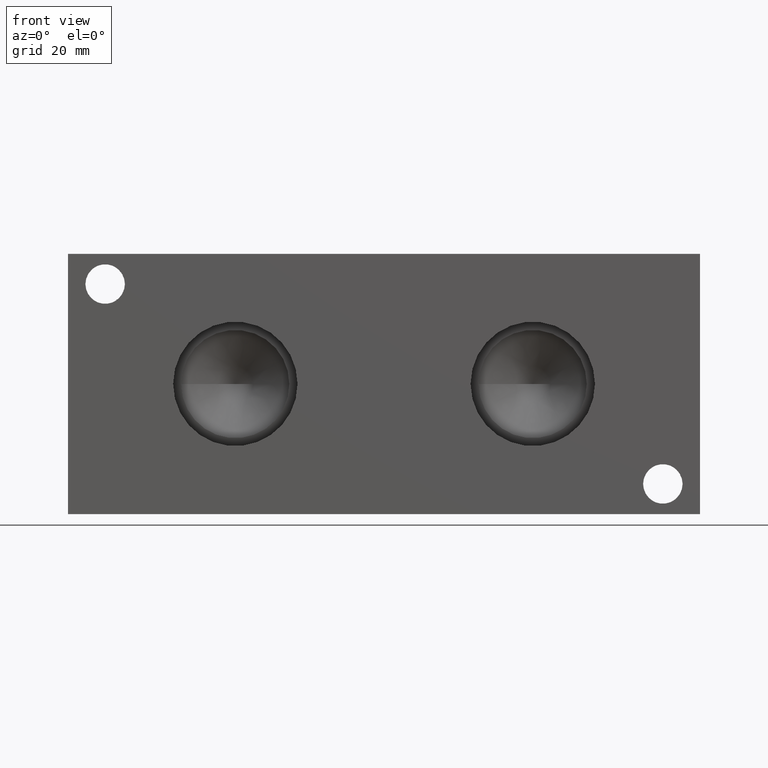
[diagram: clean part render]
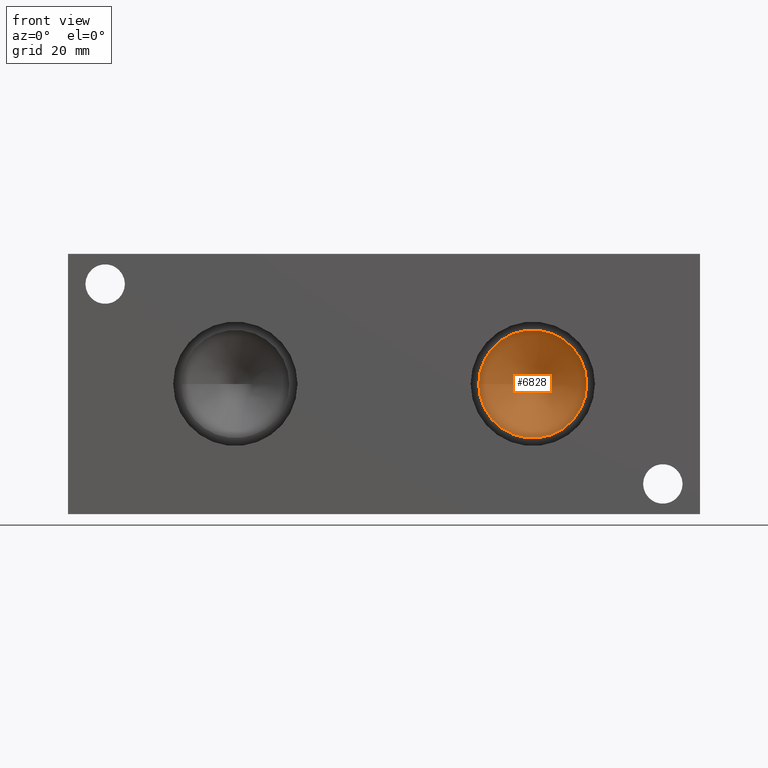
[diagram: same view with one face highlighted and labeled with its STEP entity id]
A machine part, front view. The second image highlights one B-rep face of the part: STEP entity #6828.
In plain terms, the highlighted conical surface has half-angle 60 deg.
Its self-contained STEP definition (entity closure, byte-faithful):
#45=CONICAL_SURFACE('',#7112,9.22655,1.0471975511966);
#77=CIRCLE('',#7113,18.4531);
#78=CIRCLE('',#7114,18.4531);
#785=FACE_OUTER_BOUND('',#1166,.T.);
#1166=EDGE_LOOP('',(#5852,#5853,#5854,#5855));
#1848=LINE('',#11616,#2516);
#2516=VECTOR('',#8308,9.22655);
#3137=VERTEX_POINT('',#11612);
#3138=VERTEX_POINT('',#11613);
#3139=VERTEX_POINT('',#11615);
#4055=EDGE_CURVE('',#3137,#3138,#77,.T.);
#4056=EDGE_CURVE('',#3138,#3139,#1848,.T.);
#4057=EDGE_CURVE('',#3138,#3137,#78,.T.);
#5852=ORIENTED_EDGE('',*,*,#4055,.T.);
#5853=ORIENTED_EDGE('',*,*,#4056,.T.);
#5854=ORIENTED_EDGE('',*,*,#4056,.F.);
#5855=ORIENTED_EDGE('',*,*,#4057,.T.);
#6828=ADVANCED_FACE('',(#785),#45,.F.);
#7112=AXIS2_PLACEMENT_3D('',#11611,#8304,#8305);
#7113=AXIS2_PLACEMENT_3D('',#11614,#8306,#8307);
#7114=AXIS2_PLACEMENT_3D('',#11617,#8309,#8310);
#8304=DIRECTION('center_axis',(0.,-1.,0.));
#8305=DIRECTION('ref_axis',(1.,0.,0.));
#8306=DIRECTION('center_axis',(0.,-1.,0.));
#8307=DIRECTION('ref_axis',(1.,0.,0.));
#8308=DIRECTION('',(0.866025403784439,0.5,1.06057523872491E-16));
#8309=DIRECTION('center_axis',(0.,-1.,0.));
#8310=DIRECTION('ref_axis',(1.,0.,0.));
#11611=CARTESIAN_POINT('Origin',(158.75,25.8995411261915,44.45));
#11612=CARTESIAN_POINT('',(177.2031,20.57259,44.45));
#11613=CARTESIAN_POINT('',(140.2969,20.57259,44.45));
#11614=CARTESIAN_POINT('Origin',(158.75,20.57259,44.45));
#11615=CARTESIAN_POINT('',(158.75,31.2264922523831,44.45));
#11616=CARTESIAN_POINT('',(149.52345,25.8995411261915,44.45));
#11617=CARTESIAN_POINT('Origin',(158.75,20.57259,44.45));